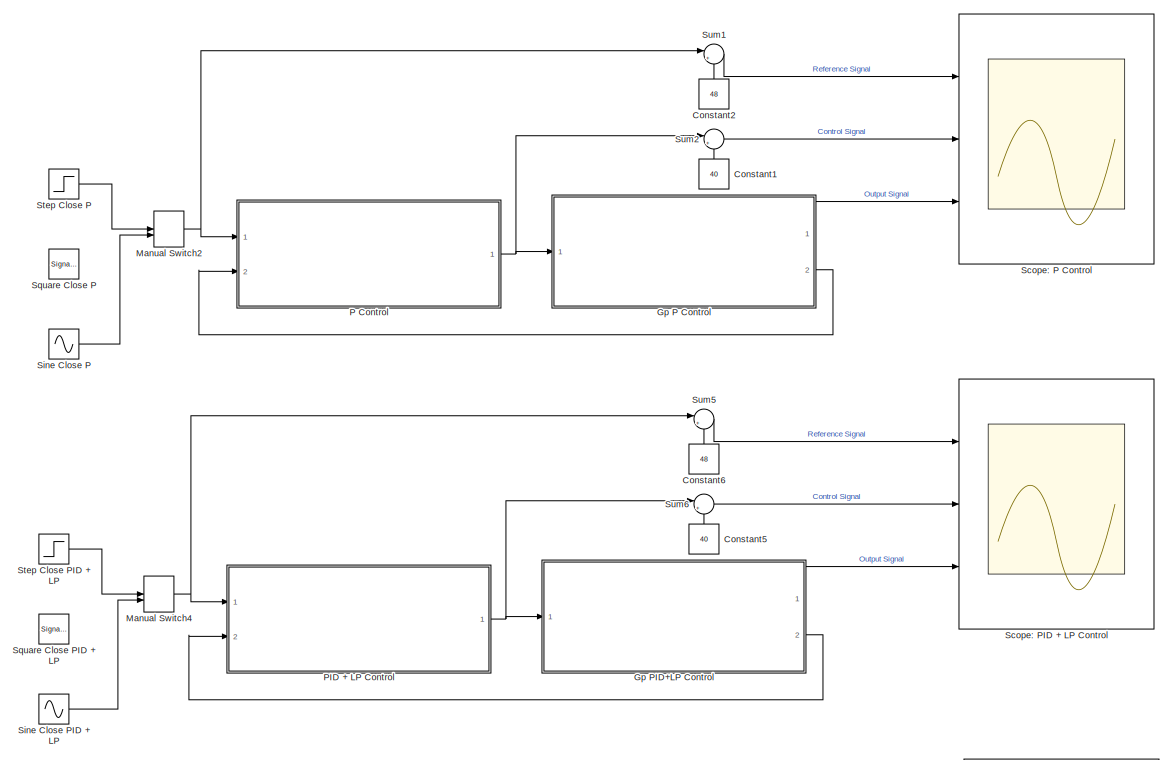
[diagram: root canvas - part 1/6, top left region]
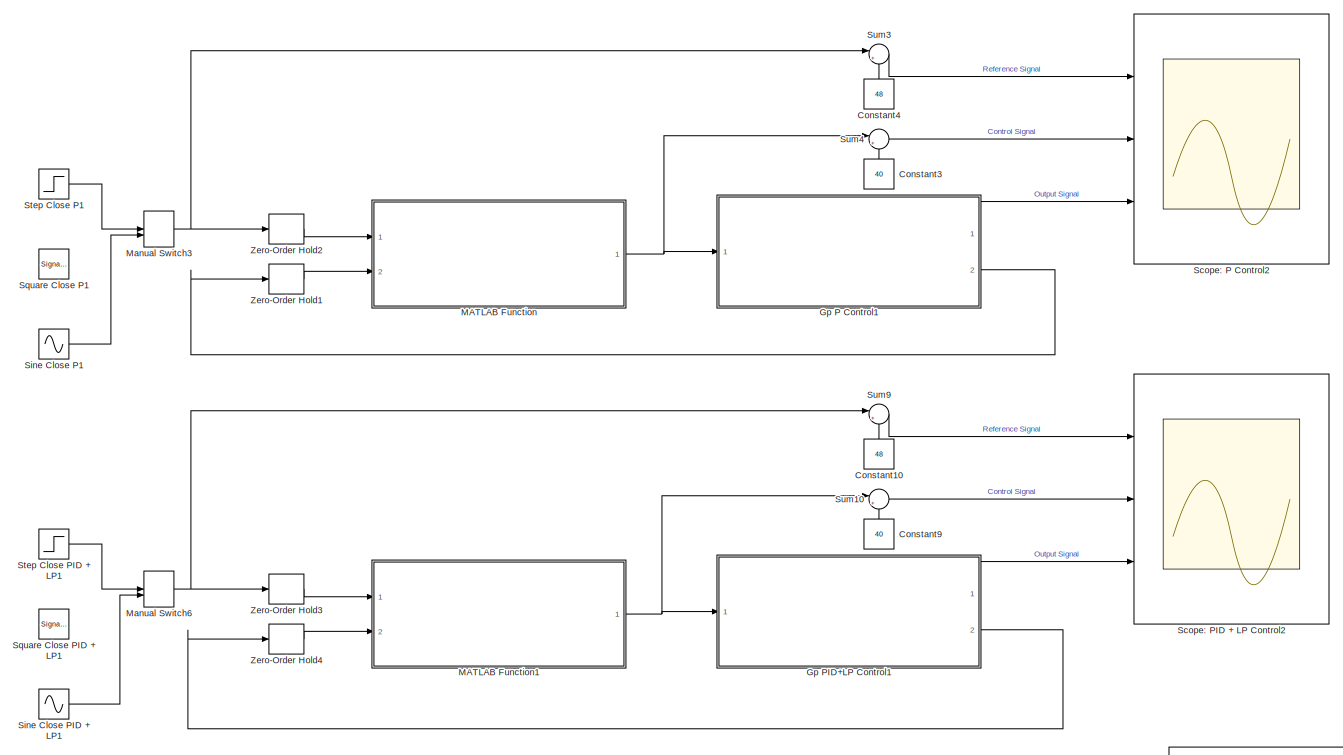
[diagram: root canvas - part 2/6, top right region]
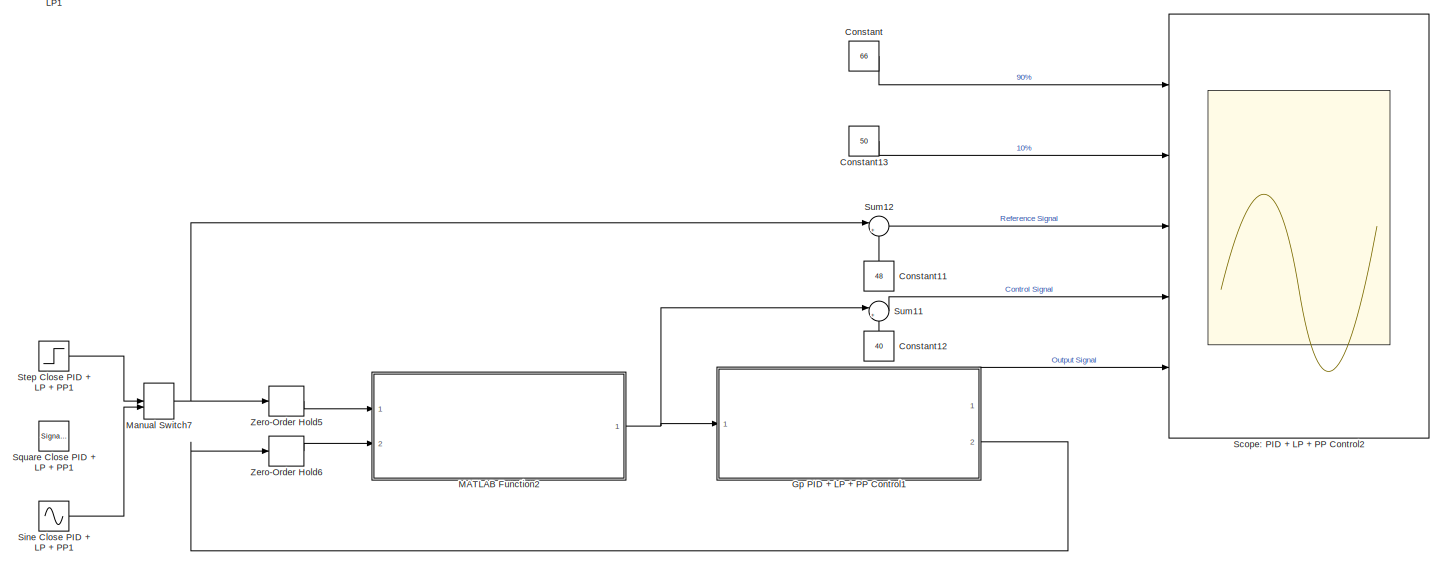
[diagram: root canvas - part 3/6, middle right region]
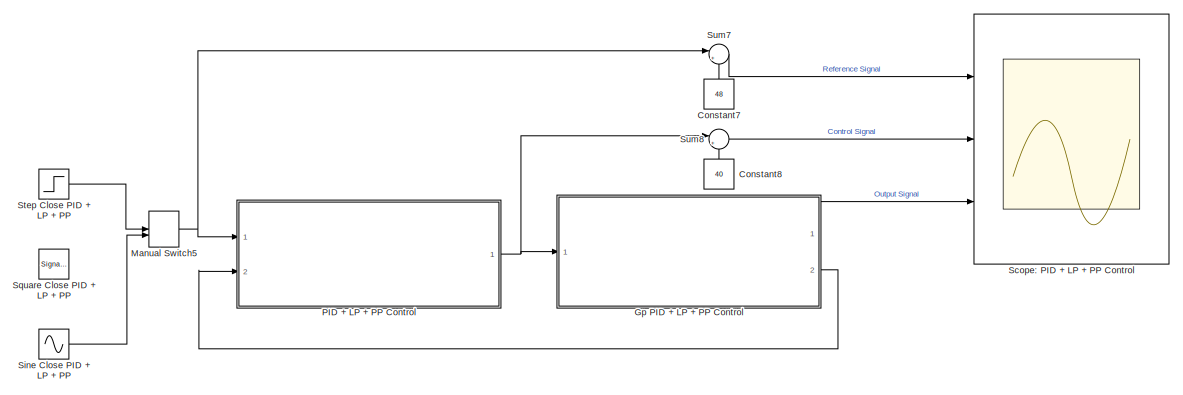
[diagram: root canvas - part 4/6, middle left region]
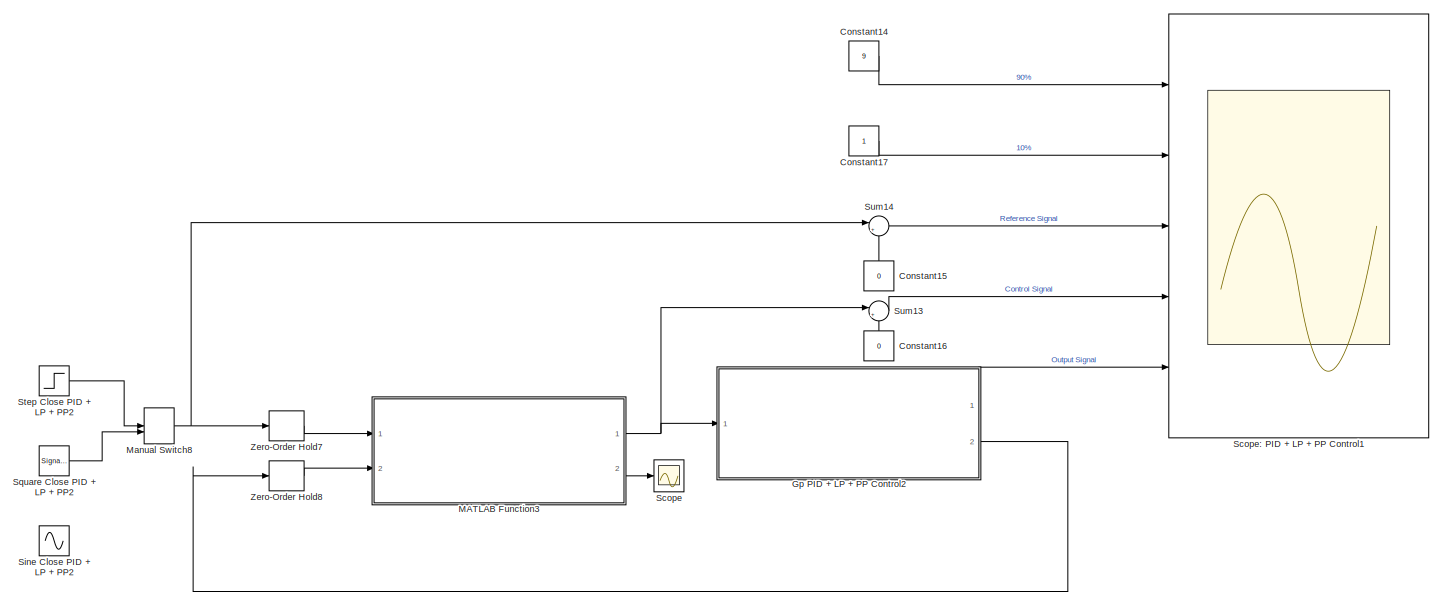
[diagram: root canvas - part 5/6, bottom right region]
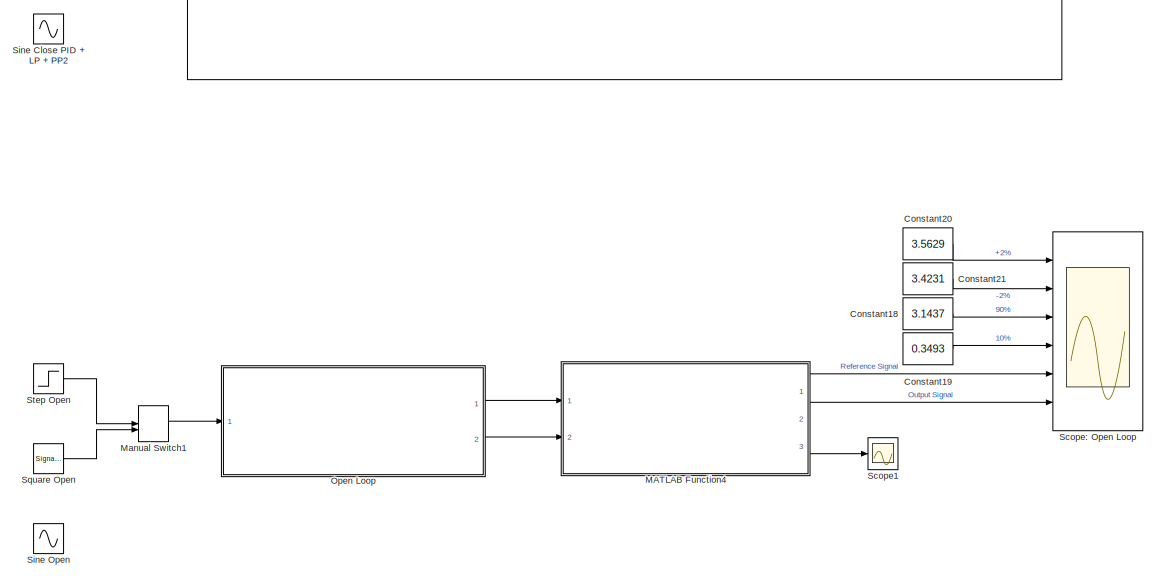
[diagram: root canvas - part 6/6, bottom right region]
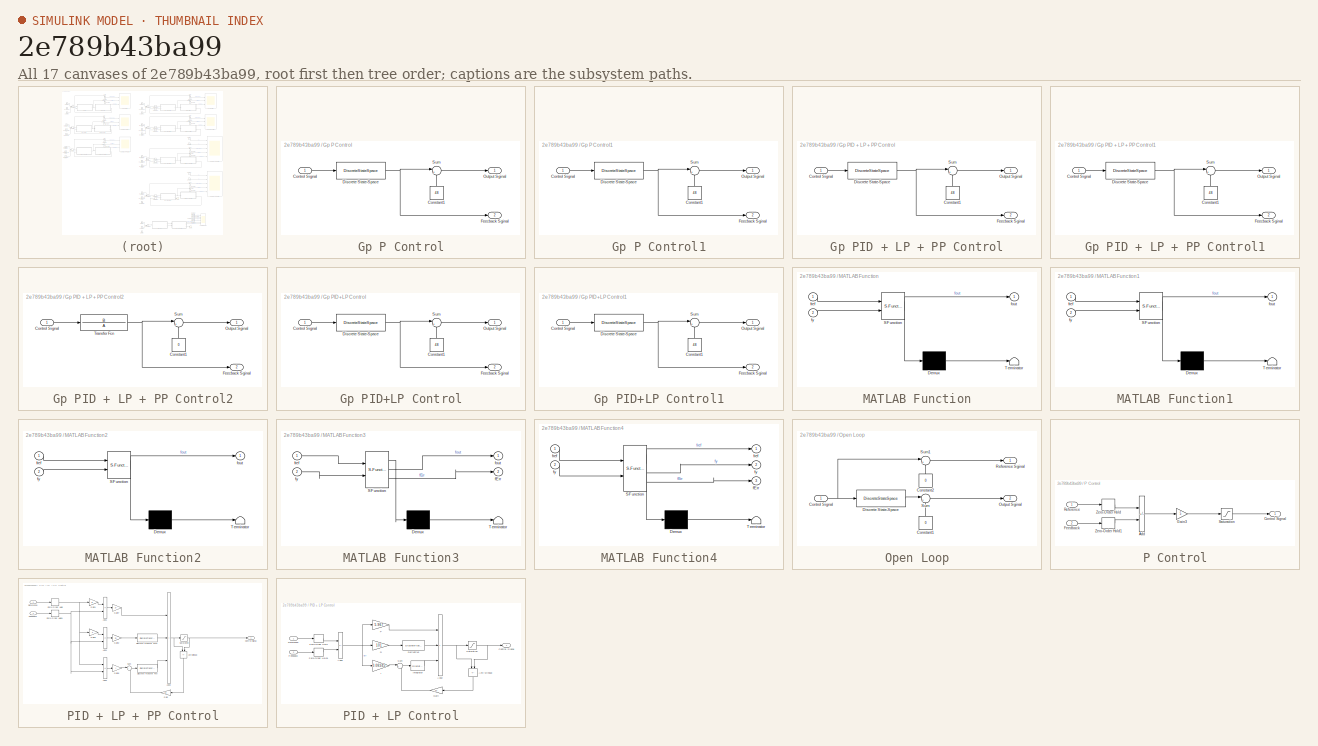
[diagram: thumbnail index - all 17 canvases of the model, root first then tree order]
MODEL slx_2e789b43ba99
KIND model
CONFIG AbsTol = auto
CONFIG EnableMultiTasking = off
CONFIG FixedStep = auto
CONFIG MaxStep = auto
CONFIG MinStep = auto
CONFIG RelTol = 1e-3
CONFIG SampleTimeConstraint = Unconstrained
CONFIG SolverName = VariableStepAuto
CONFIG StartTime = 0.0
CONFIG StopTime = 3600
BLOCK [Constant] Constant
  Value = 66
BLOCK [Constant] Constant1
  NameLocation = right
  Value = 40
BLOCK [Constant] Constant10
  NameLocation = right
  Value = 48
BLOCK [Constant] Constant11
  NameLocation = right
  Value = 48
BLOCK [Constant] Constant12
  NameLocation = right
  Value = 40
BLOCK [Constant] Constant13
  Value = 50
BLOCK [Constant] Constant14
  Value = 9
BLOCK [Constant] Constant15
  NameLocation = right
  Value = 0
BLOCK [Constant] Constant16
  NameLocation = right
  Value = 0
BLOCK [Constant] Constant17
BLOCK [Constant] Constant18
  Value = 3.1437
BLOCK [Constant] Constant19
  Value = 0.3493
BLOCK [Constant] Constant2
  NameLocation = right
  Value = 48
BLOCK [Constant] Constant20
  Value = 3.5629
BLOCK [Constant] Constant21
  Value = 3.4231
BLOCK [Constant] Constant3
  NameLocation = right
  Value = 40
BLOCK [Constant] Constant4
  NameLocation = right
  Value = 48
BLOCK [Constant] Constant5
  NameLocation = right
  Value = 40
BLOCK [Constant] Constant6
  NameLocation = right
  Value = 48
BLOCK [Constant] Constant7
  NameLocation = right
  Value = 48
BLOCK [Constant] Constant8
  NameLocation = right
  Value = 40
BLOCK [Constant] Constant9
  NameLocation = right
  Value = 40
BLOCK [SubSystem] Gp P Control
  Ports = [1, 2]
  RequestExecContextInheritance = off
BLOCK [Constant] Gp P Control/Constant1
  NameLocation = right
  Value = 48
BLOCK [Inport] Gp P Control/Control Signal
  NameLocation = left
BLOCK [DiscreteStateSpace] Gp P Control/Discrete State-Space
  A = sysSS.A
  B = sysSS.B
  C = sysSS.C
  D = sysSS.D
  InitialCondition = ic
  SampleTime = Ts
BLOCK [Outport] Gp P Control/Feecback Sginal
  NameLocation = right
  Port = 2
BLOCK [Outport] Gp P Control/Output Sginal
  NameLocation = right
BLOCK [Sum] Gp P Control/Sum
  Inputs = |++
  Ports = [2, 1]
BLOCK [SubSystem] Gp P Control1
  Ports = [1, 2]
  RequestExecContextInheritance = off
BLOCK [Constant] Gp P Control1/Constant1
  NameLocation = right
  Value = 48
BLOCK [Inport] Gp P Control1/Control Signal
  NameLocation = left
BLOCK [DiscreteStateSpace] Gp P Control1/Discrete State-Space
  A = sysSS.A
  B = sysSS.B
  C = sysSS.C
  D = sysSS.D
  InitialCondition = ic
  SampleTime = Ts
BLOCK [Outport] Gp P Control1/Feecback Sginal
  NameLocation = right
  Port = 2
BLOCK [Outport] Gp P Control1/Output Sginal
  NameLocation = right
BLOCK [Sum] Gp P Control1/Sum
  Inputs = |++
  Ports = [2, 1]
BLOCK [SubSystem] Gp PID + LP + PP Control
  Ports = [1, 2]
  RequestExecContextInheritance = off
BLOCK [Constant] Gp PID + LP + PP Control/Constant1
  NameLocation = right
  Value = 48
BLOCK [Inport] Gp PID + LP + PP Control/Control Signal
  NameLocation = left
BLOCK [DiscreteStateSpace] Gp PID + LP + PP Control/Discrete State-Space
  A = sysSS.A
  B = sysSS.B
  C = sysSS.C
  D = sysSS.D
  InitialCondition = ic
  SampleTime = Ts
BLOCK [Outport] Gp PID + LP + PP Control/Feecback Sginal
  NameLocation = right
  Port = 2
BLOCK [Outport] Gp PID + LP + PP Control/Output Sginal
  NameLocation = right
BLOCK [Sum] Gp PID + LP + PP Control/Sum
  Inputs = |++
  Ports = [2, 1]
BLOCK [SubSystem] Gp PID + LP + PP Control1
  Ports = [1, 2]
  RequestExecContextInheritance = off
BLOCK [Constant] Gp PID + LP + PP Control1/Constant1
  NameLocation = right
  Value = 48
BLOCK [Inport] Gp PID + LP + PP Control1/Control Signal
  NameLocation = left
BLOCK [DiscreteStateSpace] Gp PID + LP + PP Control1/Discrete State-Space
  A = sysSS.A
  B = sysSS.B
  C = sysSS.C
  D = sysSS.D
  InitialCondition = ic
  SampleTime = Ts
BLOCK [Outport] Gp PID + LP + PP Control1/Feecback Sginal
  NameLocation = right
  Port = 2
BLOCK [Outport] Gp PID + LP + PP Control1/Output Sginal
  NameLocation = right
BLOCK [Sum] Gp PID + LP + PP Control1/Sum
  Inputs = |++
  Ports = [2, 1]
BLOCK [SubSystem] Gp PID + LP + PP Control2
  Ports = [1, 2]
  RequestExecContextInheritance = off
BLOCK [Constant] Gp PID + LP + PP Control2/Constant1
  NameLocation = right
  Value = 0
BLOCK [Inport] Gp PID + LP + PP Control2/Control Signal
  NameLocation = left
BLOCK [Outport] Gp PID + LP + PP Control2/Feecback Sginal
  NameLocation = right
  Port = 2
BLOCK [Outport] Gp PID + LP + PP Control2/Output Sginal
  NameLocation = right
BLOCK [Sum] Gp PID + LP + PP Control2/Sum
  Inputs = |++
  Ports = [2, 1]
BLOCK [TransferFcn] Gp PID + LP + PP Control2/Transfer Fcn
  Denominator = A
  Numerator = B
BLOCK [SubSystem] Gp PID+LP Control
  Ports = [1, 2]
  RequestExecContextInheritance = off
BLOCK [Constant] Gp PID+LP Control/Constant1
  NameLocation = right
  Value = 48
BLOCK [Inport] Gp PID+LP Control/Control Signal
  NameLocation = left
BLOCK [DiscreteStateSpace] Gp PID+LP Control/Discrete State-Space
  A = sysSS.A
  B = sysSS.B
  C = sysSS.C
  D = sysSS.D
  InitialCondition = ic
  SampleTime = Ts
BLOCK [Outport] Gp PID+LP Control/Feecback Sginal
  NameLocation = right
  Port = 2
BLOCK [Outport] Gp PID+LP Control/Output Sginal
  NameLocation = right
BLOCK [Sum] Gp PID+LP Control/Sum
  Inputs = |++
  Ports = [2, 1]
BLOCK [SubSystem] Gp PID+LP Control1
  Ports = [1, 2]
  RequestExecContextInheritance = off
BLOCK [Constant] Gp PID+LP Control1/Constant1
  NameLocation = right
  Value = 48
BLOCK [Inport] Gp PID+LP Control1/Control Signal
  NameLocation = left
BLOCK [DiscreteStateSpace] Gp PID+LP Control1/Discrete State-Space
  A = sysSS.A
  B = sysSS.B
  C = sysSS.C
  D = sysSS.D
  InitialCondition = ic
  SampleTime = Ts
BLOCK [Outport] Gp PID+LP Control1/Feecback Sginal
  NameLocation = right
  Port = 2
BLOCK [Outport] Gp PID+LP Control1/Output Sginal
  NameLocation = right
BLOCK [Sum] Gp PID+LP Control1/Sum
  Inputs = |++
  Ports = [2, 1]
BLOCK [SubSystem] MATLAB Function
  ErrorFcn = Stateflow.Translate.translate
  PermitHierarchicalResolution = ExplicitOnly
  Ports = [2, 1]
  RequestExecContextInheritance = off
  SFBlockType = MATLAB Function
  TreatAsAtomicUnit = on
BLOCK [Demux] MATLAB Function/ Demux 
  Outputs = 1
  Ports = [1, 1]
BLOCK [S-Function] MATLAB Function/ SFunction 
  EnableBusSupport = on
  FunctionName = sf_sfun
  PortCounts = [2 2]
  Ports = [2, 2]
  SFcnIsStateOwnerBlock = off
  SFunctionDeploymentMode = off
  Tag = Stateflow S-Function 2
BLOCK [Terminator] MATLAB Function/ Terminator 
BLOCK [Outport] MATLAB Function/fout
BLOCK [Inport] MATLAB Function/fref
BLOCK [Inport] MATLAB Function/fy
  Port = 2
BLOCK [SubSystem] MATLAB Function1
  ErrorFcn = Stateflow.Translate.translate
  PermitHierarchicalResolution = ExplicitOnly
  Ports = [2, 1]
  RequestExecContextInheritance = off
  SFBlockType = MATLAB Function
  TreatAsAtomicUnit = on
BLOCK [Demux] MATLAB Function1/ Demux 
  Outputs = 1
  Ports = [1, 1]
BLOCK [S-Function] MATLAB Function1/ SFunction 
  EnableBusSupport = on
  FunctionName = sf_sfun
  PortCounts = [2 2]
  Ports = [2, 2]
  SFcnIsStateOwnerBlock = off
  SFunctionDeploymentMode = off
  Tag = Stateflow S-Function 1
BLOCK [Terminator] MATLAB Function1/ Terminator 
BLOCK [Outport] MATLAB Function1/fout
BLOCK [Inport] MATLAB Function1/fref
BLOCK [Inport] MATLAB Function1/fy
  Port = 2
BLOCK [SubSystem] MATLAB Function2
  ErrorFcn = Stateflow.Translate.translate
  PermitHierarchicalResolution = ExplicitOnly
  Ports = [2, 1]
  RequestExecContextInheritance = off
  SFBlockType = MATLAB Function
  TreatAsAtomicUnit = on
BLOCK [Demux] MATLAB Function2/ Demux 
  Outputs = 1
  Ports = [1, 1]
BLOCK [S-Function] MATLAB Function2/ SFunction 
  EnableBusSupport = on
  FunctionName = sf_sfun
  PortCounts = [2 2]
  Ports = [2, 2]
  SFcnIsStateOwnerBlock = off
  SFunctionDeploymentMode = off
  Tag = Stateflow S-Function 3
BLOCK [Terminator] MATLAB Function2/ Terminator 
BLOCK [Outport] MATLAB Function2/fout
BLOCK [Inport] MATLAB Function2/fref
BLOCK [Inport] MATLAB Function2/fy
  Port = 2
BLOCK [SubSystem] MATLAB Function3
  ErrorFcn = Stateflow.Translate.translate
  PermitHierarchicalResolution = ExplicitOnly
  Ports = [2, 2]
  RequestExecContextInheritance = off
  SFBlockType = MATLAB Function
  TreatAsAtomicUnit = on
BLOCK [Demux] MATLAB Function3/ Demux 
  Outputs = 1
  Ports = [1, 1]
BLOCK [S-Function] MATLAB Function3/ SFunction 
  EnableBusSupport = on
  FunctionName = sf_sfun
  PortCounts = [2 3]
  Ports = [2, 3]
  SFcnIsStateOwnerBlock = off
  SFunctionDeploymentMode = off
  Tag = Stateflow S-Function 4
BLOCK [Terminator] MATLAB Function3/ Terminator 
BLOCK [Outport] MATLAB Function3/fErr
  Port = 2
BLOCK [Outport] MATLAB Function3/fout
BLOCK [Inport] MATLAB Function3/fref
BLOCK [Inport] MATLAB Function3/fy
  Port = 2
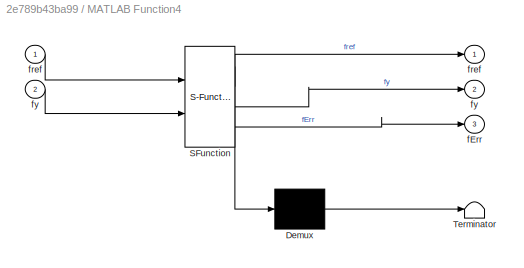
BLOCK [SubSystem] MATLAB Function4
  ErrorFcn = Stateflow.Translate.translate
  PermitHierarchicalResolution = ExplicitOnly
  Ports = [2, 3]
  RequestExecContextInheritance = off
  SFBlockType = MATLAB Function
  TreatAsAtomicUnit = on
BLOCK [Demux] MATLAB Function4/ Demux 
  Outputs = 1
  Ports = [1, 1]
BLOCK [S-Function] MATLAB Function4/ SFunction 
  EnableBusSupport = on
  FunctionName = sf_sfun
  PortCounts = [2 4]
  Ports = [2, 4]
  SFcnIsStateOwnerBlock = off
  SFunctionDeploymentMode = off
  Tag = Stateflow S-Function 5
BLOCK [Terminator] MATLAB Function4/ Terminator 
BLOCK [Outport] MATLAB Function4/fErr
  Port = 3
BLOCK [Outport] MATLAB Function4/fref
BLOCK [Inport] MATLAB Function4/fref 
BLOCK [Outport] MATLAB Function4/fy
  Port = 2
BLOCK [Inport] MATLAB Function4/fy 
  Port = 2
BLOCK [ManualSwitch] Manual Switch1
BLOCK [ManualSwitch] Manual Switch2
  CurrentSetting = 0
BLOCK [ManualSwitch] Manual Switch3
  CurrentSetting = 0
BLOCK [ManualSwitch] Manual Switch4
  CurrentSetting = 0
BLOCK [ManualSwitch] Manual Switch5
BLOCK [ManualSwitch] Manual Switch6
  CurrentSetting = 0
BLOCK [ManualSwitch] Manual Switch7
BLOCK [ManualSwitch] Manual Switch8
  CurrentSetting = 0
BLOCK [SubSystem] Open Loop
  Ports = [1, 2]
  RequestExecContextInheritance = off
BLOCK [Constant] Open Loop/Constant1
  NameLocation = right
  Value = 0
BLOCK [Constant] Open Loop/Constant2
  NameLocation = right
  Value = 0
BLOCK [Inport] Open Loop/Control Signal
  NameLocation = left
BLOCK [DiscreteStateSpace] Open Loop/Discrete State-Space
  A = sysSS.A
  B = sysSS.B
  C = sysSS.C
  D = sysSS.D
  InitialCondition = ic
  SampleTime = Ts
BLOCK [Outport] Open Loop/Output Sginal
  NameLocation = right
  Port = 2
BLOCK [Outport] Open Loop/Reference Sginal
  NameLocation = right
BLOCK [Sum] Open Loop/Sum
  Inputs = |++
  Ports = [2, 1]
BLOCK [Sum] Open Loop/Sum1
  Inputs = |++
  Ports = [2, 1]
BLOCK [SubSystem] P Control
  Ports = [2, 1]
  RequestExecContextInheritance = off
BLOCK [Sum] P Control/Add
  IconShape = rectangular
  Inputs = +-
  Ports = [2, 1]
BLOCK [Outport] P Control/Control Signal
  NameLocation = right
BLOCK [Inport] P Control/Feedback
  NameLocation = left
  Port = 2
BLOCK [Gain] P Control/Gain3
  Gain = 5
BLOCK [Inport] P Control/Reference
  NameLocation = left
BLOCK [Saturate] P Control/Saturation
  LowerLimit = -40
  UpperLimit = 60
BLOCK [ZeroOrderHold] P Control/Zero-Order Hold
BLOCK [ZeroOrderHold] P Control/Zero-Order Hold1
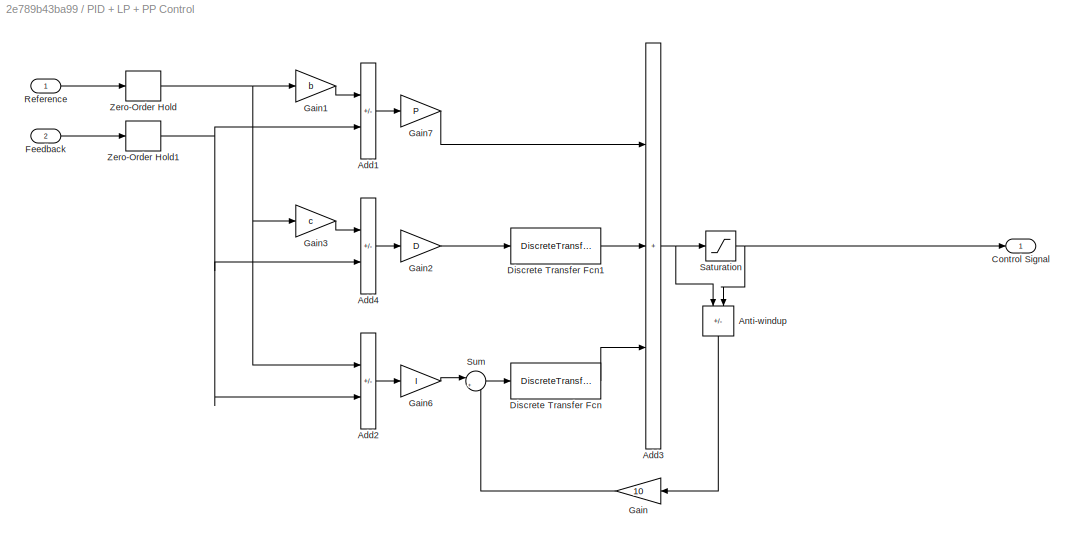
BLOCK [SubSystem] PID + LP + PP Control
  Ports = [2, 1]
  RequestExecContextInheritance = off
BLOCK [Sum] PID + LP + PP Control/Add1
  IconShape = rectangular
  Inputs = +-
  Ports = [2, 1]
BLOCK [Sum] PID + LP + PP Control/Add2
  IconShape = rectangular
  Inputs = +-
  Ports = [2, 1]
BLOCK [Sum] PID + LP + PP Control/Add3
  IconShape = rectangular
  Inputs = +++
  Ports = [3, 1]
BLOCK [Sum] PID + LP + PP Control/Add4
  IconShape = rectangular
  Inputs = +-
  Ports = [2, 1]
BLOCK [Sum] PID + LP + PP Control/Anti-windup
  IconShape = rectangular
  Inputs = -+
  NameLocation = right
  Ports = [2, 1]
BLOCK [Outport] PID + LP + PP Control/Control Signal
  NameLocation = right
BLOCK [DiscreteTransferFcn] PID + LP + PP Control/Discrete Transfer Fcn
  Denominator = [1 -1]
  InputPortMap = u0
  Numerator = [1 0]
  Ports = [1, 1]
  SampleTime = Ts
BLOCK [DiscreteTransferFcn] PID + LP + PP Control/Discrete Transfer Fcn1
  Denominator = [1+N -1]
  InputPortMap = u0
  Numerator = [N -N]
  Ports = [1, 1]
  SampleTime = Ts
BLOCK [Inport] PID + LP + PP Control/Feedback
  NameLocation = left
  Port = 2
BLOCK [Gain] PID + LP + PP Control/Gain
  Gain = 10
BLOCK [Gain] PID + LP + PP Control/Gain1
  Gain = b
BLOCK [Gain] PID + LP + PP Control/Gain2
  Gain = D
BLOCK [Gain] PID + LP + PP Control/Gain3
  Gain = c
BLOCK [Gain] PID + LP + PP Control/Gain6
  Gain = I
BLOCK [Gain] PID + LP + PP Control/Gain7
  Gain = P
BLOCK [Inport] PID + LP + PP Control/Reference
  NameLocation = left
BLOCK [Saturate] PID + LP + PP Control/Saturation
  LowerLimit = -40
  UpperLimit = 60
BLOCK [Sum] PID + LP + PP Control/Sum
  Inputs = |++
  Ports = [2, 1]
BLOCK [ZeroOrderHold] PID + LP + PP Control/Zero-Order Hold
BLOCK [ZeroOrderHold] PID + LP + PP Control/Zero-Order Hold1
BLOCK [SubSystem] PID + LP Control
  Ports = [2, 1]
  RequestExecContextInheritance = off
BLOCK [Sum] PID + LP Control/Add1
  IconShape = rectangular
  Inputs = +-
  Ports = [2, 1]
BLOCK [Sum] PID + LP Control/Add2
  IconShape = rectangular
  Inputs = +++
  Ports = [3, 1]
BLOCK [Sum] PID + LP Control/Anti-windup
  IconShape = rectangular
  Inputs = -+
  NameLocation = right
  Ports = [2, 1]
BLOCK [Outport] PID + LP Control/Control Signal
  NameLocation = right
BLOCK [Gain] PID + LP Control/D
  Gain = 101
  NameLocation = top
BLOCK [DiscreteTransferFcn] PID + LP Control/Derivative
  Denominator = [1 0.5735]
  InputPortMap = u0
  Numerator = [1 -1]
  Ports = [1, 1]
  SampleTime = Ts
BLOCK [Inport] PID + LP Control/Feedback
  NameLocation = left
  Port = 2
BLOCK [Gain] PID + LP Control/Gain
  Gain = 10
BLOCK [Gain] PID + LP Control/I
  Gain = 0.08345
  NameLocation = top
BLOCK [DiscreteTransferFcn] PID + LP Control/Integrator
  Denominator = [1 -1]
  InputPortMap = u0
  Numerator = [1 0]
  Ports = [1, 1]
  SampleTime = Ts
BLOCK [Gain] PID + LP Control/P
  Gain = 5.967
  NameLocation = top
BLOCK [Inport] PID + LP Control/Reference
  NameLocation = left
BLOCK [Saturate] PID + LP Control/Saturation
  LowerLimit = -40
  UpperLimit = 60
BLOCK [Sum] PID + LP Control/Sum
  Inputs = |++
  Ports = [2, 1]
BLOCK [ZeroOrderHold] PID + LP Control/Zero-Order Hold
BLOCK [ZeroOrderHold] PID + LP Control/Zero-Order Hold1
BLOCK [Scope] Scope
  Floating = off
  NumInputPorts = 1
  Ports = [1]
  ScopeSpecificationString = Simulink.scopes.TimeScopeBlockCfg('CurrentConfiguration', extmgr.ConfigurationSet(extmgr.Configuration('Core','General UI',true),extmgr.Configuration('Core','Source UI',true),extmgr.Configuration('Sources','WiredSimulink',true,'DataLoggingVariableName','ScopeData1'),extmgr.Configuration('Visuals','Time Domain',true),extmgr.Configuration('Tools','Plot Navigation',true),extmgr.Configuration('Tools',...<+40ch>
BLOCK [Scope] Scope1
  Floating = off
  NumInputPorts = 1
  Ports = [1]
  ScopeSpecificationString = Simulink.scopes.TimeScopeBlockCfg('CurrentConfiguration', extmgr.ConfigurationSet(extmgr.Configuration('Core','General UI',true),extmgr.Configuration('Core','Source UI',true),extmgr.Configuration('Sources','WiredSimulink',true,'DataLoggingVariableName','ScopeData1'),extmgr.Configuration('Visuals','Time Domain',true),extmgr.Configuration('Tools','Plot Navigation',true),extmgr.Configuration('Tools',...<+40ch>
BLOCK [Scope] Scope: Open Loop
  Floating = off
  NumInputPorts = 6
  Ports = [6]
  ScopeSpecificationString = Simulink.scopes.TimeScopeBlockCfg('CurrentConfiguration', extmgr.ConfigurationSet(extmgr.Configuration('Core','General UI',true),extmgr.Configuration('Core','Source UI',true),extmgr.Configuration('Sources','WiredSimulink',true,'DataLoggingVariableName','ScopeData2'),extmgr.Configuration('Visuals','Time Domain',true,'SerializedDisplays',{struct('MinYLimReal','-1.25','MaxYLimReal','11.25','YLabelRea...<+1610ch>
BLOCK [Scope] Scope: P Control
  Floating = off
  NumInputPorts = 3
  Ports = [3]
  ScopeSpecificationString = Simulink.scopes.TimeScopeBlockCfg('CurrentConfiguration', extmgr.ConfigurationSet(extmgr.Configuration('Core','General UI',true),extmgr.Configuration('Core','Source UI',true),extmgr.Configuration('Sources','WiredSimulink',true,'DataLoggingVariableName','ScopeData2'),extmgr.Configuration('Visuals','Time Domain',true,'SerializedDisplays',{struct('MinYLimReal','-12.5','MaxYLimReal','112.5','YLabelRea...<+1533ch>
BLOCK [Scope] Scope: P Control2
  Floating = off
  NumInputPorts = 3
  Ports = [3]
  ScopeSpecificationString = Simulink.scopes.TimeScopeBlockCfg('CurrentConfiguration', extmgr.ConfigurationSet(extmgr.Configuration('Core','General UI',true),extmgr.Configuration('Core','Source UI',true),extmgr.Configuration('Sources','WiredSimulink',true,'DataLoggingVariableName','ScopeData1'),extmgr.Configuration('Visuals','Time Domain',true,'SerializedDisplays',{struct('MinYLimReal','-12.5','MaxYLimReal','112.5','YLabelRea...<+1534ch>
BLOCK [Scope] Scope: PID + LP + PP  Control1
  Floating = off
  NumInputPorts = 5
  Ports = [5]
  ScopeSpecificationString = Simulink.scopes.TimeScopeBlockCfg('CurrentConfiguration', extmgr.ConfigurationSet(extmgr.Configuration('Core','General UI',true,'FigureColor',[0.972549019607843 0.972549019607843 0.972549019607843]),extmgr.Configuration('Core','Source UI',true),extmgr.Configuration('Sources','WiredSimulink',true,'DataLoggingVariableName','ScopeData1'),extmgr.Configuration('Visuals','Time Domain',true,'SerializedDi...<+2263ch>
BLOCK [Scope] Scope: PID + LP + PP  Control2
  Floating = off
  NumInputPorts = 5
  Ports = [5]
  ScopeSpecificationString = Simulink.scopes.TimeScopeBlockCfg('CurrentConfiguration', extmgr.ConfigurationSet(extmgr.Configuration('Core','General UI',true,'FigureColor',[0.972549019607843 0.972549019607843 0.972549019607843]),extmgr.Configuration('Core','Source UI',true),extmgr.Configuration('Sources','WiredSimulink',true,'DataLoggingVariableName','ScopeData2'),extmgr.Configuration('Visuals','Time Domain',true,'SerializedDi...<+2239ch>
BLOCK [Scope] Scope: PID + LP + PP Control
  Floating = off
  NumInputPorts = 3
  Ports = [3]
  ScopeSpecificationString = Simulink.scopes.TimeScopeBlockCfg('CurrentConfiguration', extmgr.ConfigurationSet(extmgr.Configuration('Core','General UI',true),extmgr.Configuration('Core','Source UI',true),extmgr.Configuration('Sources','WiredSimulink',true,'DataLoggingVariableName','ScopeData3'),extmgr.Configuration('Visuals','Time Domain',true,'SerializedDisplays',{struct('MinYLimReal','-12.5','MaxYLimReal','112.5','YLabelRea...<+1535ch>
BLOCK [Scope] Scope: PID + LP Control
  Floating = off
  NumInputPorts = 3
  Ports = [3]
  ScopeSpecificationString = Simulink.scopes.TimeScopeBlockCfg('CurrentConfiguration', extmgr.ConfigurationSet(extmgr.Configuration('Core','General UI',true),extmgr.Configuration('Core','Source UI',true),extmgr.Configuration('Sources','WiredSimulink',true),extmgr.Configuration('Visuals','Time Domain',true,'SerializedDisplays',{struct('MinYLimReal','-12.5','MaxYLimReal','112.5','YLabelReal','','MinYLimMag','0.00000','MaxYLimMa...<+1492ch>
BLOCK [Scope] Scope: PID + LP Control2
  Floating = off
  NumInputPorts = 3
  Ports = [3]
  ScopeSpecificationString = Simulink.scopes.TimeScopeBlockCfg('CurrentConfiguration', extmgr.ConfigurationSet(extmgr.Configuration('Core','General UI',true),extmgr.Configuration('Core','Source UI',true),extmgr.Configuration('Sources','WiredSimulink',true,'DataLoggingVariableName','ScopeData3'),extmgr.Configuration('Visuals','Time Domain',true,'SerializedDisplays',{struct('MinYLimReal','-12.5','MaxYLimReal','112.5','YLabelRea...<+1534ch>
BLOCK [Sin] Sine Close P
  Amplitude = 20
  Frequency = 0.004
  Ports = [0, 1]
  SampleTime = 0
BLOCK [Sin] Sine Close P1
  Amplitude = 20
  Frequency = 0.004
  Ports = [0, 1]
  SampleTime = 0
BLOCK [Sin] Sine Close PID + LP
  Amplitude = 20
  Frequency = 0.007
  Ports = [0, 1]
  SampleTime = 0
BLOCK [Sin] Sine Close PID + LP + PP
  Amplitude = 10
  Frequency = 0.004
  Ports = [0, 1]
  SampleTime = 0
BLOCK [Sin] Sine Close PID + LP + PP1
  Amplitude = 10
  Frequency = 1/1800*6.28
  Ports = [0, 1]
  SampleTime = 0
BLOCK [Sin] Sine Close PID + LP + PP2
  Amplitude = 10
  Frequency = 1/1800*6.28
  Ports = [0, 1]
  SampleTime = 0
BLOCK [Sin] Sine Close PID + LP1
  Amplitude = 20
  Frequency = 0.007
  Ports = [0, 1]
  SampleTime = 0
BLOCK [Sin] Sine Open
  Amplitude = 10
  Frequency = 1/1800*6.28
  Ports = [0, 1]
  SampleTime = 0
BLOCK [SignalGenerator] Square Close P
  Amplitude = 20
  Frequency = 1/900
  Ports = [0, 1]
  WaveForm = square
BLOCK [SignalGenerator] Square Close P1
  Amplitude = 20
  Frequency = 1/900
  Ports = [0, 1]
  WaveForm = square
BLOCK [SignalGenerator] Square Close PID + LP
  Amplitude = 20
  Frequency = 1/900
  Ports = [0, 1]
  WaveForm = square
BLOCK [SignalGenerator] Square Close PID + LP + PP
  Amplitude = 20
  Frequency = 1/900
  Ports = [0, 1]
  WaveForm = square
BLOCK [SignalGenerator] Square Close PID + LP + PP1
  Amplitude = 20
  Frequency = 1/1800
  Ports = [0, 1]
  WaveForm = square
BLOCK [SignalGenerator] Square Close PID + LP + PP2
  Amplitude = 10
  Frequency = 1/1800
  Ports = [0, 1]
  WaveForm = square
BLOCK [SignalGenerator] Square Close PID + LP1
  Amplitude = 20
  Frequency = 1/900
  Ports = [0, 1]
  WaveForm = square
BLOCK [SignalGenerator] Square Open
  Amplitude = 10
  Frequency = 1/1800
  Ports = [0, 1]
  WaveForm = square
BLOCK [Step] Step Close P
  After = 20
  SampleTime = Ts
BLOCK [Step] Step Close P1
  After = 20
  SampleTime = Ts
BLOCK [Step] Step Close PID + LP
  After = 20
  SampleTime = Ts
BLOCK [Step] Step Close PID + LP + PP
  After = 20
  SampleTime = 0.4
BLOCK [Step] Step Close PID + LP + PP1
  After = 10
BLOCK [Step] Step Close PID + LP + PP2
  After = 10
BLOCK [Step] Step Close PID + LP1
  After = 20
  SampleTime = Ts
BLOCK [Step] Step Open
  After = 10
  SampleTime = 1
BLOCK [Sum] Sum1
  Inputs = |++
  Ports = [2, 1]
BLOCK [Sum] Sum10
  Inputs = |++
  Ports = [2, 1]
BLOCK [Sum] Sum11
  Inputs = |++
  Ports = [2, 1]
BLOCK [Sum] Sum12
  Inputs = |++
  Ports = [2, 1]
BLOCK [Sum] Sum13
  Inputs = |++
  Ports = [2, 1]
BLOCK [Sum] Sum14
  Inputs = |++
  Ports = [2, 1]
BLOCK [Sum] Sum2
  Inputs = |++
  Ports = [2, 1]
BLOCK [Sum] Sum3
  Inputs = |++
  Ports = [2, 1]
BLOCK [Sum] Sum4
  Inputs = |++
  Ports = [2, 1]
BLOCK [Sum] Sum5
  Inputs = |++
  Ports = [2, 1]
BLOCK [Sum] Sum6
  Inputs = |++
  Ports = [2, 1]
BLOCK [Sum] Sum7
  Inputs = |++
  Ports = [2, 1]
BLOCK [Sum] Sum8
  Inputs = |++
  Ports = [2, 1]
BLOCK [Sum] Sum9
  Inputs = |++
  Ports = [2, 1]
BLOCK [ZeroOrderHold] Zero-Order Hold1
BLOCK [ZeroOrderHold] Zero-Order Hold2
BLOCK [ZeroOrderHold] Zero-Order Hold3
BLOCK [ZeroOrderHold] Zero-Order Hold4
BLOCK [ZeroOrderHold] Zero-Order Hold5
BLOCK [ZeroOrderHold] Zero-Order Hold6
BLOCK [ZeroOrderHold] Zero-Order Hold7
BLOCK [ZeroOrderHold] Zero-Order Hold8
LINE Constant10:1 -> Sum9:2
LINE Constant11:1 -> Sum12:2
LINE Constant12:1 -> Sum11:2
LINE Constant13:1 -> Scope: PID + LP + PP  Control2:2
LINE Constant14:1 -> Scope: PID + LP + PP  Control1:1
LINE Constant15:1 -> Sum14:2
LINE Constant16:1 -> Sum13:2
LINE Constant17:1 -> Scope: PID + LP + PP  Control1:2
LINE Constant18:1 -> Scope: Open Loop:3
LINE Constant19:1 -> Scope: Open Loop:4
LINE Constant1:1 -> Sum2:2
LINE Constant20:1 -> Scope: Open Loop:1
LINE Constant21:1 -> Scope: Open Loop:2
LINE Constant2:1 -> Sum1:2
LINE Constant3:1 -> Sum4:2
LINE Constant4:1 -> Sum3:2
LINE Constant5:1 -> Sum6:2
LINE Constant6:1 -> Sum5:2
LINE Constant7:1 -> Sum7:2
LINE Constant8:1 -> Sum8:2
LINE Constant9:1 -> Sum10:2
LINE Constant:1 -> Scope: PID + LP + PP  Control2:1
LINE Gp P Control/Constant1:1 -> Gp P Control/Sum:2
LINE Gp P Control/Control Signal:1 -> Gp P Control/Discrete State-Space:1
NET Gp P Control/Discrete State-Space:1 -> Gp P Control/Feecback Sginal:1, Gp P Control/Sum:1
LINE Gp P Control/Sum:1 -> Gp P Control/Output Sginal:1
LINE Gp P Control1/Constant1:1 -> Gp P Control1/Sum:2
LINE Gp P Control1/Control Signal:1 -> Gp P Control1/Discrete State-Space:1
NET Gp P Control1/Discrete State-Space:1 -> Gp P Control1/Feecback Sginal:1, Gp P Control1/Sum:1
LINE Gp P Control1/Sum:1 -> Gp P Control1/Output Sginal:1
LINE Gp P Control1:1 -> Scope: P Control2:3
LINE Gp P Control1:2 -> Zero-Order Hold1:1
LINE Gp P Control:1 -> Scope: P Control:3
LINE Gp P Control:2 -> P Control:2
LINE Gp PID + LP + PP Control/Constant1:1 -> Gp PID + LP + PP Control/Sum:2
LINE Gp PID + LP + PP Control/Control Signal:1 -> Gp PID + LP + PP Control/Discrete State-Space:1
NET Gp PID + LP + PP Control/Discrete State-Space:1 -> Gp PID + LP + PP Control/Feecback Sginal:1, Gp PID + LP + PP Control/Sum:1
LINE Gp PID + LP + PP Control/Sum:1 -> Gp PID + LP + PP Control/Output Sginal:1
LINE Gp PID + LP + PP Control1/Constant1:1 -> Gp PID + LP + PP Control1/Sum:2
LINE Gp PID + LP + PP Control1/Control Signal:1 -> Gp PID + LP + PP Control1/Discrete State-Space:1
NET Gp PID + LP + PP Control1/Discrete State-Space:1 -> Gp PID + LP + PP Control1/Feecback Sginal:1, Gp PID + LP + PP Control1/Sum:1
LINE Gp PID + LP + PP Control1/Sum:1 -> Gp PID + LP + PP Control1/Output Sginal:1
LINE Gp PID + LP + PP Control1:1 -> Scope: PID + LP + PP  Control2:5
LINE Gp PID + LP + PP Control1:2 -> Zero-Order Hold6:1
LINE Gp PID + LP + PP Control2/Constant1:1 -> Gp PID + LP + PP Control2/Sum:2
LINE Gp PID + LP + PP Control2/Control Signal:1 -> Gp PID + LP + PP Control2/Transfer Fcn:1
LINE Gp PID + LP + PP Control2/Sum:1 -> Gp PID + LP + PP Control2/Output Sginal:1
NET Gp PID + LP + PP Control2/Transfer Fcn:1 -> Gp PID + LP + PP Control2/Feecback Sginal:1, Gp PID + LP + PP Control2/Sum:1
LINE Gp PID + LP + PP Control2:1 -> Scope: PID + LP + PP  Control1:5
LINE Gp PID + LP + PP Control2:2 -> Zero-Order Hold8:1
LINE Gp PID + LP + PP Control:1 -> Scope: PID + LP + PP Control:3
LINE Gp PID + LP + PP Control:2 -> PID + LP + PP Control:2
LINE Gp PID+LP Control/Constant1:1 -> Gp PID+LP Control/Sum:2
LINE Gp PID+LP Control/Control Signal:1 -> Gp PID+LP Control/Discrete State-Space:1
NET Gp PID+LP Control/Discrete State-Space:1 -> Gp PID+LP Control/Feecback Sginal:1, Gp PID+LP Control/Sum:1
LINE Gp PID+LP Control/Sum:1 -> Gp PID+LP Control/Output Sginal:1
LINE Gp PID+LP Control1/Constant1:1 -> Gp PID+LP Control1/Sum:2
LINE Gp PID+LP Control1/Control Signal:1 -> Gp PID+LP Control1/Discrete State-Space:1
NET Gp PID+LP Control1/Discrete State-Space:1 -> Gp PID+LP Control1/Feecback Sginal:1, Gp PID+LP Control1/Sum:1
LINE Gp PID+LP Control1/Sum:1 -> Gp PID+LP Control1/Output Sginal:1
LINE Gp PID+LP Control1:1 -> Scope: PID + LP Control2:3
LINE Gp PID+LP Control1:2 -> Zero-Order Hold4:1
LINE Gp PID+LP Control:1 -> Scope: PID + LP Control:3
LINE Gp PID+LP Control:2 -> PID + LP Control:2
NET MATLAB Function1:1 -> Gp PID+LP Control1:1, Sum10:1
NET MATLAB Function2:1 -> Gp PID + LP + PP Control1:1, Sum11:1
NET MATLAB Function3:1 -> Gp PID + LP + PP Control2:1, Sum13:1
LINE MATLAB Function3:2 -> Scope:1
LINE MATLAB Function4:1 -> Scope: Open Loop:5
LINE MATLAB Function4:2 -> Scope: Open Loop:6
LINE MATLAB Function4:3 -> Scope1:1
NET MATLAB Function:1 -> Gp P Control1:1, Sum4:1
LINE Manual Switch1:1 -> Open Loop:1
NET Manual Switch2:1 -> P Control:1, Sum1:1
NET Manual Switch3:1 -> Sum3:1, Zero-Order Hold2:1
NET Manual Switch4:1 -> PID + LP Control:1, Sum5:1
NET Manual Switch5:1 -> PID + LP + PP Control:1, Sum7:1
NET Manual Switch6:1 -> Sum9:1, Zero-Order Hold3:1
NET Manual Switch7:1 -> Sum12:1, Zero-Order Hold5:1
NET Manual Switch8:1 -> Sum14:1, Zero-Order Hold7:1
LINE Open Loop/Constant1:1 -> Open Loop/Sum:2
LINE Open Loop/Constant2:1 -> Open Loop/Sum1:2
NET Open Loop/Control Signal:1 -> Open Loop/Discrete State-Space:1, Open Loop/Sum1:1
LINE Open Loop/Discrete State-Space:1 -> Open Loop/Sum:1
LINE Open Loop/Sum1:1 -> Open Loop/Reference Sginal:1
LINE Open Loop/Sum:1 -> Open Loop/Output Sginal:1
LINE Open Loop:1 -> MATLAB Function4:1
LINE Open Loop:2 -> MATLAB Function4:2
LINE P Control/Add:1 -> P Control/Gain3:1
LINE P Control/Feedback:1 -> P Control/Zero-Order Hold1:1
LINE P Control/Gain3:1 -> P Control/Saturation:1
LINE P Control/Reference:1 -> P Control/Zero-Order Hold:1
LINE P Control/Saturation:1 -> P Control/Control Signal:1
LINE P Control/Zero-Order Hold1:1 -> P Control/Add:2
LINE P Control/Zero-Order Hold:1 -> P Control/Add:1
NET P Control:1 -> Gp P Control:1, Sum2:1
LINE PID + LP + PP Control/Add1:1 -> PID + LP + PP Control/Gain7:1
LINE PID + LP + PP Control/Add2:1 -> PID + LP + PP Control/Gain6:1
NET PID + LP + PP Control/Add3:1 -> PID + LP + PP Control/Anti-windup:1, PID + LP + PP Control/Saturation:1
LINE PID + LP + PP Control/Add4:1 -> PID + LP + PP Control/Gain2:1
LINE PID + LP + PP Control/Anti-windup:1 -> PID + LP + PP Control/Gain:1
LINE PID + LP + PP Control/Discrete Transfer Fcn1:1 -> PID + LP + PP Control/Add3:2
LINE PID + LP + PP Control/Discrete Transfer Fcn:1 -> PID + LP + PP Control/Add3:3
LINE PID + LP + PP Control/Feedback:1 -> PID + LP + PP Control/Zero-Order Hold1:1
LINE PID + LP + PP Control/Gain1:1 -> PID + LP + PP Control/Add1:1
LINE PID + LP + PP Control/Gain2:1 -> PID + LP + PP Control/Discrete Transfer Fcn1:1
LINE PID + LP + PP Control/Gain3:1 -> PID + LP + PP Control/Add4:1
LINE PID + LP + PP Control/Gain6:1 -> PID + LP + PP Control/Sum:1
LINE PID + LP + PP Control/Gain7:1 -> PID + LP + PP Control/Add3:1
LINE PID + LP + PP Control/Gain:1 -> PID + LP + PP Control/Sum:2
LINE PID + LP + PP Control/Reference:1 -> PID + LP + PP Control/Zero-Order Hold:1
NET PID + LP + PP Control/Saturation:1 -> PID + LP + PP Control/Anti-windup:2, PID + LP + PP Control/Control Signal:1
LINE PID + LP + PP Control/Sum:1 -> PID + LP + PP Control/Discrete Transfer Fcn:1
NET PID + LP + PP Control/Zero-Order Hold1:1 -> PID + LP + PP Control/Add1:2, PID + LP + PP Control/Add2:2, PID + LP + PP Control/Add4:2
NET PID + LP + PP Control/Zero-Order Hold:1 -> PID + LP + PP Control/Add2:1, PID + LP + PP Control/Gain1:1, PID + LP + PP Control/Gain3:1
NET PID + LP + PP Control:1 -> Gp PID + LP + PP Control:1, Sum8:1
NET PID + LP Control/Add1:1 -> PID + LP Control/D:1, PID + LP Control/I:1, PID + LP Control/P:1
NET PID + LP Control/Add2:1 -> PID + LP Control/Anti-windup:1, PID + LP Control/Saturation:1
LINE PID + LP Control/Anti-windup:1 -> PID + LP Control/Gain:1
LINE PID + LP Control/D:1 -> PID + LP Control/Derivative:1
LINE PID + LP Control/Derivative:1 -> PID + LP Control/Add2:2
LINE PID + LP Control/Feedback:1 -> PID + LP Control/Zero-Order Hold1:1
LINE PID + LP Control/Gain:1 -> PID + LP Control/Sum:2
LINE PID + LP Control/I:1 -> PID + LP Control/Sum:1
LINE PID + LP Control/Integrator:1 -> PID + LP Control/Add2:3
LINE PID + LP Control/P:1 -> PID + LP Control/Add2:1
LINE PID + LP Control/Reference:1 -> PID + LP Control/Zero-Order Hold:1
NET PID + LP Control/Saturation:1 -> PID + LP Control/Anti-windup:2, PID + LP Control/Control Signal:1
LINE PID + LP Control/Sum:1 -> PID + LP Control/Integrator:1
LINE PID + LP Control/Zero-Order Hold1:1 -> PID + LP Control/Add1:2
LINE PID + LP Control/Zero-Order Hold:1 -> PID + LP Control/Add1:1
NET PID + LP Control:1 -> Gp PID+LP Control:1, Sum6:1
LINE Sine Close P1:1 -> Manual Switch3:2
LINE Sine Close P:1 -> Manual Switch2:2
LINE Sine Close PID + LP + PP1:1 -> Manual Switch7:2
LINE Sine Close PID + LP + PP:1 -> Manual Switch5:2
LINE Sine Close PID + LP1:1 -> Manual Switch6:2
LINE Sine Close PID + LP:1 -> Manual Switch4:2
LINE Square Close PID + LP + PP2:1 -> Manual Switch8:2
LINE Square Open:1 -> Manual Switch1:2
LINE Step Close P1:1 -> Manual Switch3:1
LINE Step Close P:1 -> Manual Switch2:1
LINE Step Close PID + LP + PP1:1 -> Manual Switch7:1
LINE Step Close PID + LP + PP2:1 -> Manual Switch8:1
LINE Step Close PID + LP + PP:1 -> Manual Switch5:1
LINE Step Close PID + LP1:1 -> Manual Switch6:1
LINE Step Close PID + LP:1 -> Manual Switch4:1
LINE Step Open:1 -> Manual Switch1:1
LINE Sum10:1 -> Scope: PID + LP Control2:2
LINE Sum11:1 -> Scope: PID + LP + PP  Control2:4
LINE Sum12:1 -> Scope: PID + LP + PP  Control2:3
LINE Sum13:1 -> Scope: PID + LP + PP  Control1:4
LINE Sum14:1 -> Scope: PID + LP + PP  Control1:3
LINE Sum1:1 -> Scope: P Control:1
LINE Sum2:1 -> Scope: P Control:2
LINE Sum3:1 -> Scope: P Control2:1
LINE Sum4:1 -> Scope: P Control2:2
LINE Sum5:1 -> Scope: PID + LP Control:1
LINE Sum6:1 -> Scope: PID + LP Control:2
LINE Sum7:1 -> Scope: PID + LP + PP Control:1
LINE Sum8:1 -> Scope: PID + LP + PP Control:2
LINE Sum9:1 -> Scope: PID + LP Control2:1
LINE Zero-Order Hold1:1 -> MATLAB Function:2
LINE Zero-Order Hold2:1 -> MATLAB Function:1
LINE Zero-Order Hold3:1 -> MATLAB Function1:1
LINE Zero-Order Hold4:1 -> MATLAB Function1:2
LINE Zero-Order Hold5:1 -> MATLAB Function2:1
LINE Zero-Order Hold6:1 -> MATLAB Function2:2
LINE Zero-Order Hold7:1 -> MATLAB Function3:1
LINE Zero-Order Hold8:1 -> MATLAB Function3:2
note: NET lines group one-source signal fan-out (src -> all destinations, sorted); 1:1 wires keep LINE
CHART MATLAB Function1 states=1 transitions=1
  STATE_LABEL 'eML_blk_kernel()'
  STATE_LABEL 'SCRIPT:\nfunction fout = fcn(fref, fy)\n%%%%%%%%%%%%%%%%%%%%%%%%%%%%%%%%%%%%%%%%%%%%%%%%%%%%%%%\n% PID + LP for SS\n% Input : fref - reference signal\n%         fy   - feedback signal\n% Output: fout - control signal\n%%%%%%%%%%%%%%%%%%%%%%%%%%%%%%%%%%%%%%%%%%%%%%%%%%%%%%%\n% Variable Initialisation\npersistent fD_prev fI_prev fIA_prev fErr_prev fant;\nN = 0.5735; % Low pass filter value\nTs = 1;    % Sampli...<+543ch>'
CHART MATLAB Function states=1 transitions=1
  STATE_LABEL 'eML_blk_kernel()'
  STATE_LABEL 'SCRIPT:\nfunction fout = fcn(fref, fy)\n%%%%%%%%%%%%%%%%%%%%%%%%%%%%%%%%%%%%%%%%%%%%%%%%%%%%%%%\n% P for SS\n% Input : fref - reference signal\n%         fy   - feedback signal\n% Output: fout - control signal\n%%%%%%%%%%%%%%%%%%%%%%%%%%%%%%%%%%%%%%%%%%%%%%%%%%%%%%%\nP = 5;\nfp = P*(fref - fy);\n\nif fp > 60\n    fout = 60;\nelseif fp < (-40)\n    fout = -40;\nelse\n    fout = fp;\nend\nend\n\n\n'
CHART MATLAB Function2 states=1 transitions=1
  STATE_LABEL 'eML_blk_kernel()'
  STATE_LABEL 'SCRIPT:\nfunction fout = fcn(fref, fy)\n%%%%%%%%%%%%%%%%%%%%%%%%%%%%%%%%%%%%%%%%%%%%%%%%%%%%%%%\n% PID + LP + PP for SS\n% Input : fref - reference signal\n%         fy   - feedback signal\n% Output: fout - control signal\n%%%%%%%%%%%%%%%%%%%%%%%%%%%%%%%%%%%%%%%%%%%%%%%%%%%%%%%\n% Variable Initialisation\npersistent fD_prev fI_prev fIA_prev fDErr_prev fant;\nTs = 1;    % Sampling time\n% P = 6.071;\n% I = 0.0...<+746ch>'
CHART MATLAB Function3 states=1 transitions=1
  STATE_LABEL 'eML_blk_kernel()'
  STATE_LABEL 'SCRIPT:\nfunction [fout, fErr] = fcn(fref, fy)\n%%%%%%%%%%%%%%%%%%%%%%%%%%%%%%%%%%%%%%%%%%%%%%%%%%%%%%%\n% PID + LP + PP for SS\n% Input : fref - reference signal\n%         fy   - feedback signal\n% Output: fout - control signal\n%%%%%%%%%%%%%%%%%%%%%%%%%%%%%%%%%%%%%%%%%%%%%%%%%%%%%%%\n% Variable Initialisation\npersistent fD_prev fI_prev fIA_prev fDErr_prev fant;\nTs = 1;    % Sampling time\n\n% ---- Rise T...<+748ch>'
CHART MATLAB Function4 states=1 transitions=1
  STATE_LABEL 'eML_blk_kernel()'
  STATE_LABEL 'SCRIPT:\nfunction [fref, fy, fErr] = fcn(fref, fy)\nfErr = fref - fy;\nend\n\n\n'
CHART  states=0 transitions=0
CHART  states=0 transitions=0
CHART  states=0 transitions=0
CHART  states=0 transitions=0
CHART  states=0 transitions=0
